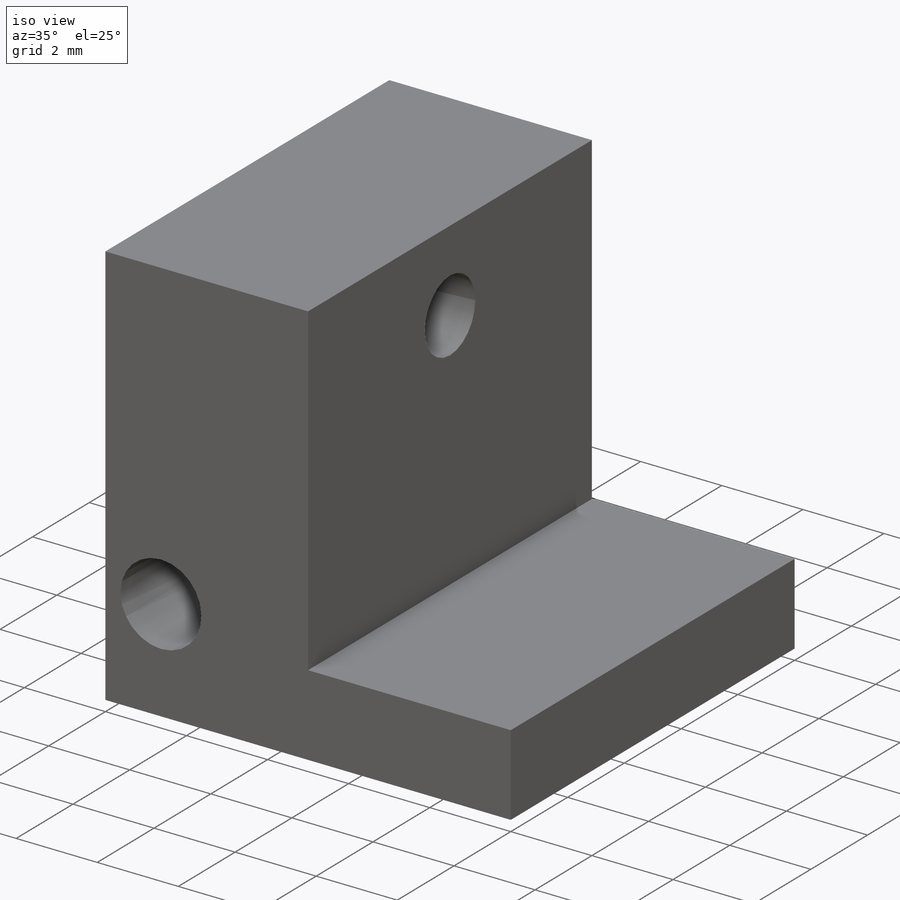
[diagram: iso view]
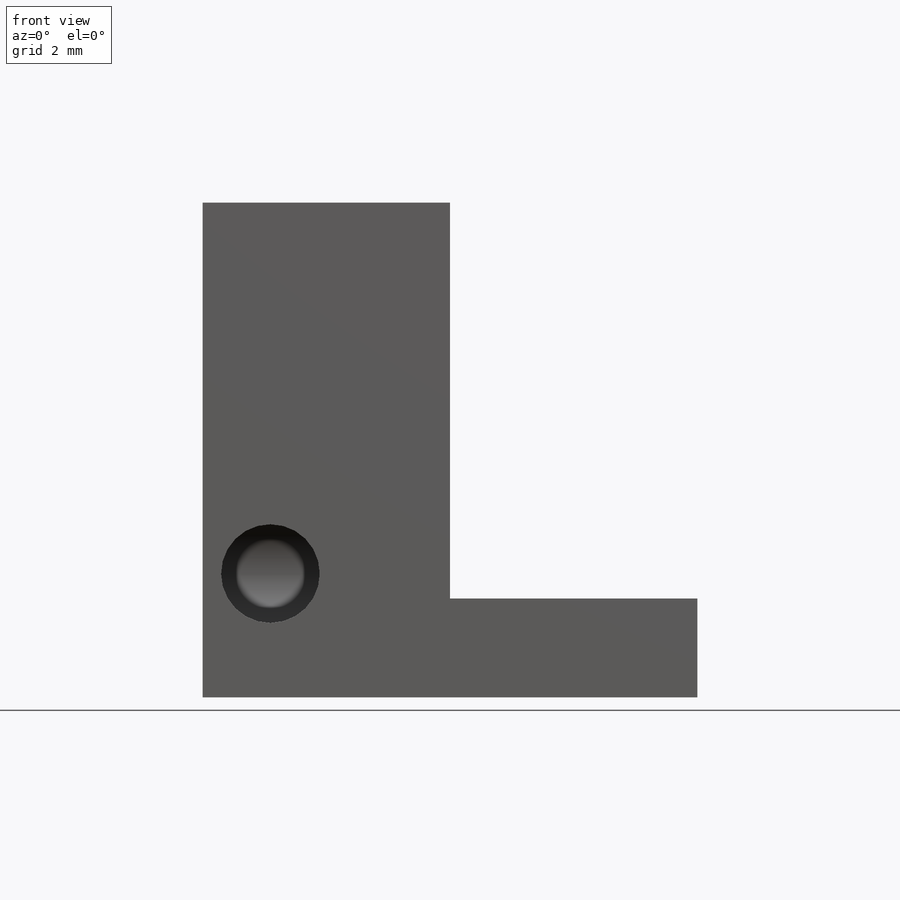
[diagram: front view]
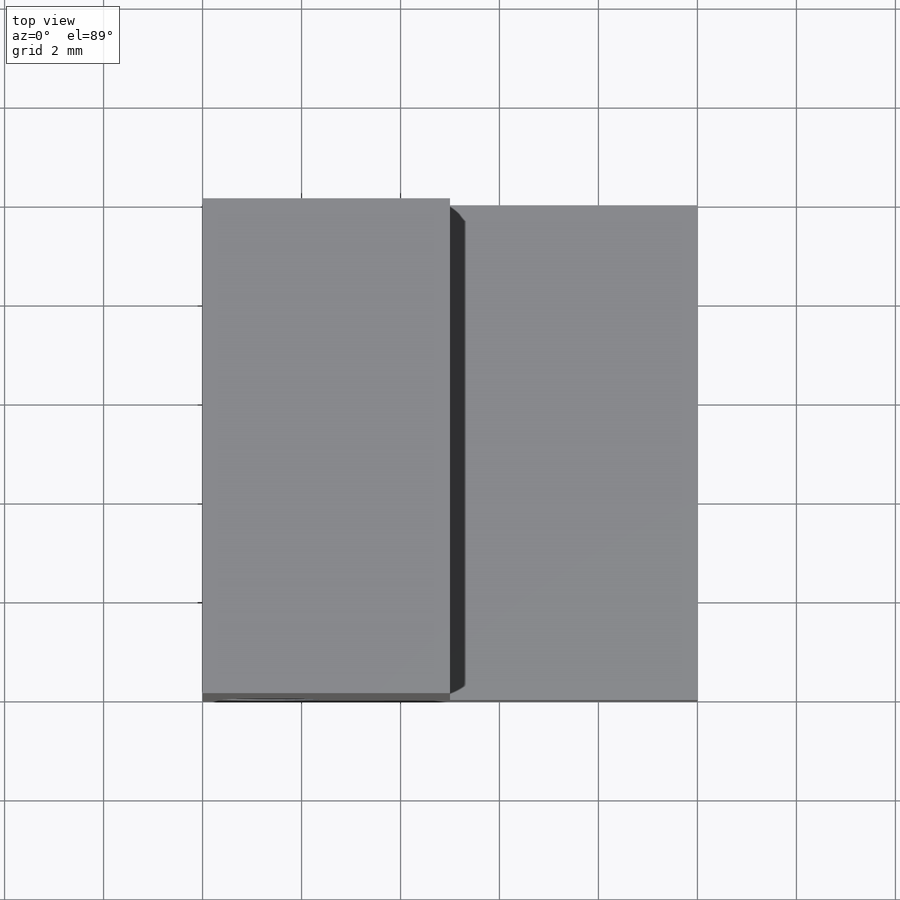
[diagram: top view]
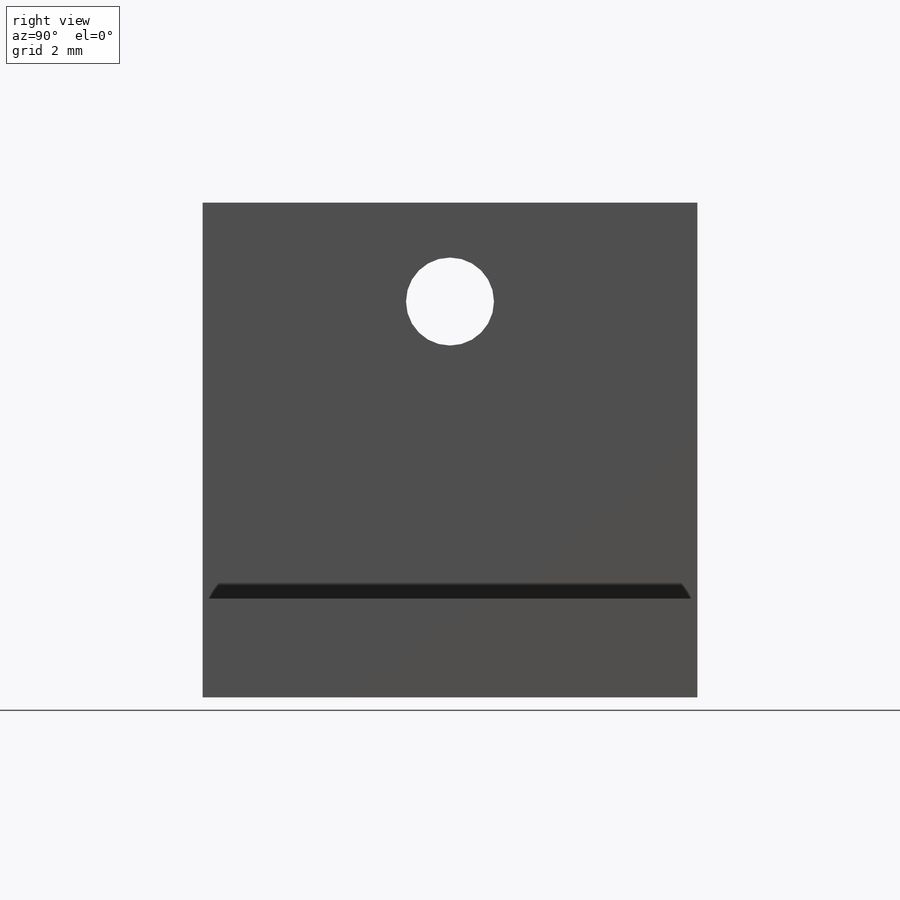
[diagram: right view]
SOLIDWORKS PART (.sldprt)
format: sldprt  version: not decoded by parser v0  size: 261,632 bytes
history: native  units: mm
features: sketch x8, cut_extrude x3, hole x2, thread x2, material x1, extrude x1, plane x1 (+11 scaffold rows collapsed)
feature tree (29):
  scaffold x11  (default folders/planes/origin — collapsed)
  material  "Copper"
  sketch  "Sketch1"  dims[D1=10.0mm D2=10.0mm]
  extrude  "Extrude1"  Depth=10mm
  sketch  "Sketch2"  dims[D1=2.0mm D2=5.0mm]
  cut_extrude  "Extrude2"  [1 undecoded]
  sketch  "Sketch3"  dims[c1.D1=~1.629564mm c1.D2=2.0mm c1.D3=2.0mm c2.D1=2.0mm c2.D3=5.0mm]
  cut_extrude  "Extrude3"  [1 undecoded]
  plane  "Plane1"
  sketch  "Sketch4"  dims[D1=2.5mm]
  cut_extrude  "Cut-Extrude1"  Depth=4.5mm
  hole  "#3-48 Tapped Hole1"  [1 undecoded]
  sketch  "Sketch6"  dims[D1=2.5mm D2=1.37mm]
  thread  "Hole Thread1"  Diameter=4.24595mm  [1 undecoded]
  sketch  "Sketch5"  dims[hole-wizard template sketch: 47 standard entries collapsed; hole parameters kept: c15.Tap Drill Depth=5.0mm c15.D3=~14.816244mm c15.Drill Angle=118.0deg]
  hole  "#2-56 Tapped Hole1"  [1 undecoded]
  sketch  "Sketch8"  dims[D1=2.0mm]
  thread  "Hole Thread2"  Diameter=4.37mm  [1 undecoded]
  sketch  "Sketch7"  dims[hole-wizard template sketch: 47 standard entries collapsed; hole parameters kept: c15.Tap Drill Depth=5.73mm c15.D3=~14.816244mm c15.Drill Angle=118.0deg]
decode coverage: 12 of 16 modeling features carry decoded parameters
note: ~ marks probable driven/reference dimensions
note: 6 parameter values undecoded
summary: no parameter record found for 4 features
note: suppression state not decoded; provenance and decode notes live in map.json
